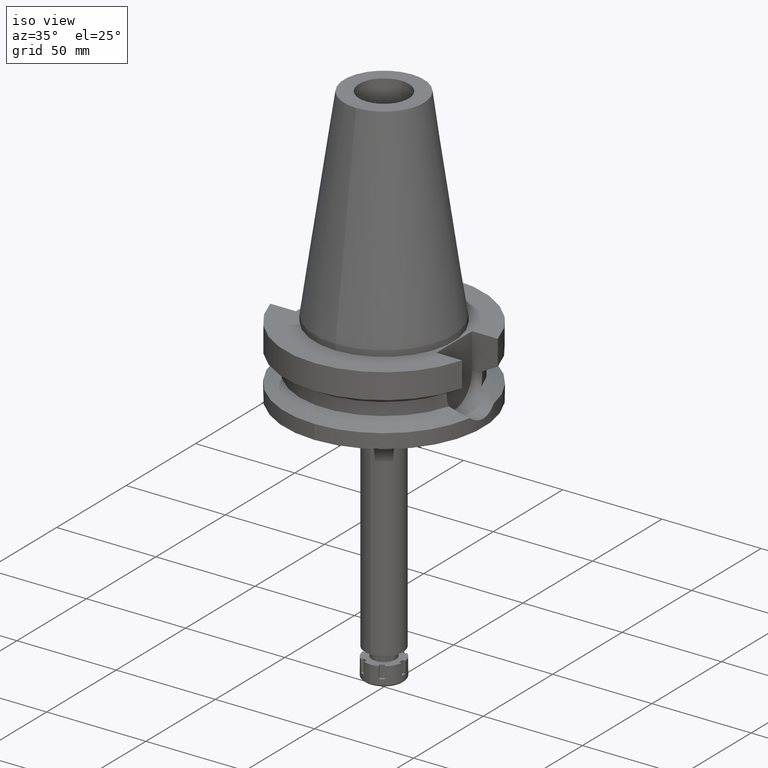
[diagram: clean part render]
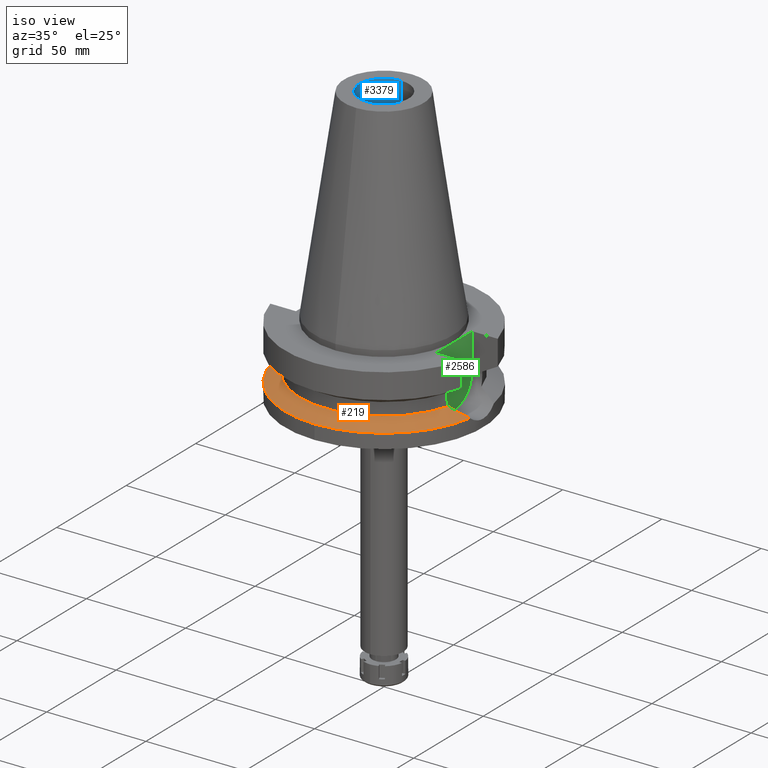
[diagram: same view with three faces highlighted in distinct colors, each labeled with its STEP entity id]
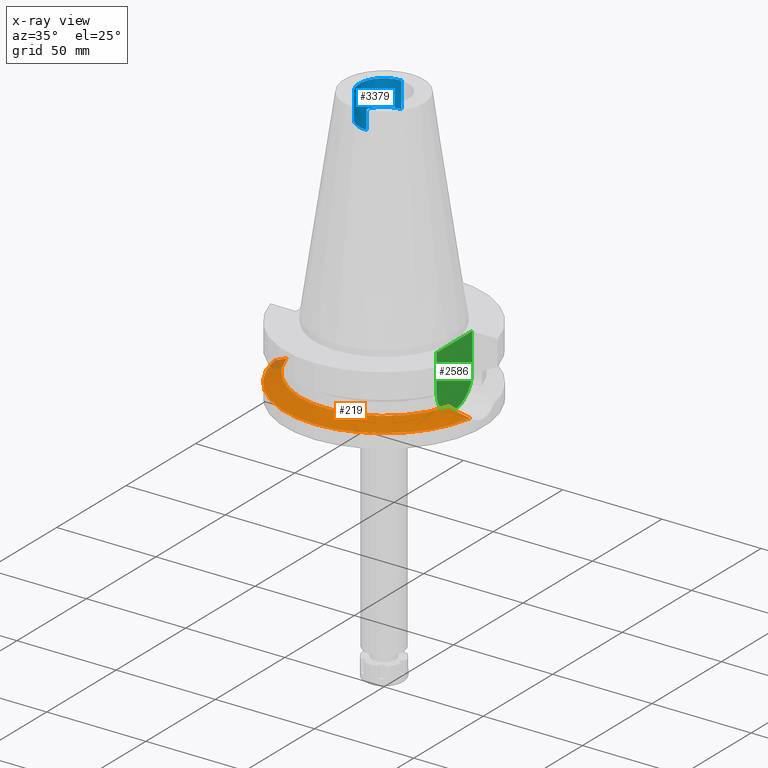
[diagram: x-ray of the same camera — body ghosted, the three highlighted faces saturated]
A machine part, iso view with three faces highlighted in distinct colors.
The next image is the same camera in x-ray (body ghosted, the three faces saturated) — at least one of them is partly hidden behind the body in this view.
Their STEP definitions:

[orange] entity #219 — the highlighted conical surface has half-angle 60 deg.
#80 = CARTESIAN_POINT ( 'NONE',  ( 45.41114734032251476, -10.35356882935180067, -28.76093257932824443 ) ) ;
#106 = CARTESIAN_POINT ( 'NONE',  ( 0.0000000000000000000, 0.0000000000000000000, -30.73730776426999967 ) ) ;
#133 = CARTESIAN_POINT ( 'NONE',  ( -45.39752549457913489, -10.35896172530817161, -28.75360426430097860 ) ) ;
#219 = ADVANCED_FACE ( 'NONE', ( #754 ), #1967, .T. ) ;
#329 = DIRECTION ( 'NONE',  ( 0.0000000000000000000, -1.000000000000000000, 0.0000000000000000000 ) ) ;
#386 = CARTESIAN_POINT ( 'NONE',  ( 44.62896528677678987, -10.63826192624886779, -28.35849464283650079 ) ) ;
#425 = EDGE_CURVE ( 'NONE', #450, #988, #2725, .T. ) ;
#438 = CIRCLE ( 'NONE', #1259, 50.00000000000000000 ) ;
#441 = CARTESIAN_POINT ( 'NONE',  ( -45.32604759747161438, -10.38583453844825044, -28.71683438483158568 ) ) ;
#446 = CARTESIAN_POINT ( 'NONE',  ( 48.17411548083510553, -9.180639421493431485, -30.17990408732095986 ) ) ;
#450 = VERTEX_POINT ( 'NONE', #1271 ) ;
#457 = CARTESIAN_POINT ( 'NONE',  ( -49.26250064874000145, -8.556052234130000045, -30.73730776426999967 ) ) ;
#608 = DIRECTION ( 'NONE',  ( 0.9852500129747439050, -0.1711210446826074982, 0.0000000000000000000 ) ) ;
#690 = CARTESIAN_POINT ( 'NONE',  ( -45.47884135725999499, -10.32818437781529752, -28.79543308990514205 ) ) ;
#710 = CARTESIAN_POINT ( 'NONE',  ( -46.22801765030641263, -10.03216824677965668, -29.18067066775586227 ) ) ;
#715 = CARTESIAN_POINT ( 'NONE',  ( 44.08627270446634583, -10.82407440620769634, -28.07906635543309903 ) ) ;
#754 = FACE_OUTER_BOUND ( 'NONE', #1649, .T. ) ;
#779 = AXIS2_PLACEMENT_3D ( 'NONE', #1332, #1910, #2705 ) ;
#808 = EDGE_CURVE ( 'NONE', #1154, #450, #2211, .T. ) ;
#904 = CARTESIAN_POINT ( 'NONE',  ( 49.26250064874000145, -8.556052234130000045, -30.73730776426999967 ) ) ;
#942 = CARTESIAN_POINT ( 'NONE',  ( 44.89557009775787577, -10.54438712182041726, -28.49570899776663069 ) ) ;
#988 = VERTEX_POINT ( 'NONE', #1301 ) ;
#1064 = ORIENTED_EDGE ( 'NONE', *, *, #3557, .F. ) ;
#1154 = VERTEX_POINT ( 'NONE', #2317 ) ;
#1167 = B_SPLINE_CURVE_WITH_KNOTS ( 'NONE', 3,
 ( #1719, #2865, #2620, #3276, #715, #386, #942, #1535, #1860, #80, #2706, #3240, #2941, #446, #2419 ),
 .UNSPECIFIED., .F., .F.,
 ( 4, 2, 2, 1, 1, 1, 2, 2, 4 ),
 ( 0.0000000000000000000, 0.2499999999999867883, 0.3749999999999801825, 0.4374999999999774070, 0.4687499999999760192, 0.4843749999999756306, 0.4921874999999766298, 0.4999999999999776845, 1.000000000000000000 ),
 .UNSPECIFIED. ) ;
#1242 = ORIENTED_EDGE ( 'NONE', *, *, #3129, .F. ) ;
#1259 = AXIS2_PLACEMENT_3D ( 'NONE', #106, #3449, #608 ) ;
#1271 = CARTESIAN_POINT ( 'NONE',  ( -49.26250064874000145, -8.556052234130000045, -30.73730776426999967 ) ) ;
#1284 = CARTESIAN_POINT ( 'NONE',  ( 0.0000000000000000000, 0.0000000000000000000, -30.73730776426999967 ) ) ;
#1301 = CARTESIAN_POINT ( 'NONE',  ( -40.85052569294000335, -11.72538061688000077, -26.40718074535000426 ) ) ;
#1305 = CARTESIAN_POINT ( 'NONE',  ( -48.69464159862322106, -8.881927206880240178, -30.44648542319169948 ) ) ;
#1332 = CARTESIAN_POINT ( 'NONE',  ( 0.0000000000000000000, 0.0000000000000000000, -28.57224425480999841 ) ) ;
#1342 = CARTESIAN_POINT ( 'NONE',  ( 40.85052569294000335, -11.72538061688000077, -26.40718074535000426 ) ) ;
#1535 = CARTESIAN_POINT ( 'NONE',  ( 45.19831145359773927, -10.43339963517109581, -28.65145591070777087 ) ) ;
#1590 = ORIENTED_EDGE ( 'NONE', *, *, #808, .F. ) ;
#1649 = EDGE_LOOP ( 'NONE', ( #1590, #1242, #1064, #2179, #2872 ) ) ;
#1666 = AXIS2_PLACEMENT_3D ( 'NONE', #3451, #3141, #329 ) ;
#1719 = CARTESIAN_POINT ( 'NONE',  ( 40.85052569294000335, -11.72538061688000077, -26.40718074535000426 ) ) ;
#1860 = CARTESIAN_POINT ( 'NONE',  ( 45.34760773394148714, -10.37756686271671036, -28.72825090948044391 ) ) ;
#1910 = DIRECTION ( 'NONE',  ( 0.0000000000000000000, 0.0000000000000000000, -1.000000000000000000 ) ) ;
#1967 = CONICAL_SURFACE ( 'NONE', #779, 46.25000000000000000, 1.047197551196400456 ) ;
#1987 = VERTEX_POINT ( 'NONE', #1342 ) ;
#2150 = CARTESIAN_POINT ( 'NONE',  ( -40.85052569294000335, -11.72538061688000077, -26.40718074535000426 ) ) ;
#2179 = ORIENTED_EDGE ( 'NONE', *, *, #2189, .F. ) ;
#2189 = EDGE_CURVE ( 'NONE', #988, #1987, #3397, .T. ) ;
#2211 = CIRCLE ( 'NONE', #2391, 50.00000000000000000 ) ;
#2317 = CARTESIAN_POINT ( 'NONE',  ( 0.0000000000000000000, -50.00000000000000000, -30.73730776426999967 ) ) ;
#2391 = AXIS2_PLACEMENT_3D ( 'NONE', #1284, #2690, #3563 ) ;
#2413 = CARTESIAN_POINT ( 'NONE',  ( -46.75505769100767139, -9.811300290057515028, -29.45151618928202097 ) ) ;
#2419 = CARTESIAN_POINT ( 'NONE',  ( 49.26250064874000145, -8.556052234130000045, -30.73730776426999967 ) ) ;
#2620 = CARTESIAN_POINT ( 'NONE',  ( 42.55058485505476540, -11.29932905614615102, -27.28700808707706926 ) ) ;
#2654 = CARTESIAN_POINT ( 'NONE',  ( -42.52884939900980044, -11.33562612316247531, -27.27647172227283789 ) ) ;
#2690 = DIRECTION ( 'NONE',  ( 0.0000000000000000000, 0.0000000000000000000, -1.000000000000000000 ) ) ;
#2697 = CARTESIAN_POINT ( 'NONE',  ( -45.96028322357604878, -10.14133759930534495, -29.04303852548128617 ) ) ;
#2705 = DIRECTION ( 'NONE',  ( 0.0000000000000000000, -1.000000000000000000, 0.0000000000000000000 ) ) ;
#2706 = CARTESIAN_POINT ( 'NONE',  ( 45.45340829707289032, -10.33755497621585384, -28.78266921495488617 ) ) ;
#2725 = B_SPLINE_CURVE_WITH_KNOTS ( 'NONE', 3,
 ( #457, #1305, #3552, #3567, #2413, #710, #2697, #3291, #690, #133, #2990, #2936, #441, #3009, #2654, #2150 ),
 .UNSPECIFIED., .F., .F.,
 ( 4, 2, 2, 1, 1, 1, 1, 2, 2, 4 ),
 ( 0.0000000000000000000, 0.2500000000000531797, 0.3750000000000797695, 0.4375000000000933142, 0.4687500000001000311, 0.4843750000001036393, 0.4921875000001046940, 0.4960937500001051381, 0.5000000000001055822, 1.000000000000000000 ),
 .UNSPECIFIED. ) ;
#2865 = CARTESIAN_POINT ( 'NONE',  ( 41.72584316825942352, -11.52210700631257723, -26.86055310759695303 ) ) ;
#2872 = ORIENTED_EDGE ( 'NONE', *, *, #425, .F. ) ;
#2936 = CARTESIAN_POINT ( 'NONE',  ( -45.33925616023898186, -10.38088120372761303, -28.72362928943382698 ) ) ;
#2941 = CARTESIAN_POINT ( 'NONE',  ( 46.91845562544436632, -9.778781588269122693, -29.53618553222547405 ) ) ;
#2990 = CARTESIAN_POINT ( 'NONE',  ( -45.36257706399497636, -10.37211797163372040, -28.73562614173595975 ) ) ;
#3009 = CARTESIAN_POINT ( 'NONE',  ( -44.01730827850749961, -10.87583879569200640, -28.04357024469653226 ) ) ;
#3129 = EDGE_CURVE ( 'NONE', #3486, #1154, #438, .T. ) ;
#3141 = DIRECTION ( 'NONE',  ( 0.0000000000000000000, 0.0000000000000000000, 1.000000000000000000 ) ) ;
#3240 = CARTESIAN_POINT ( 'NONE',  ( 45.47328773033536464, -10.32999880384496549, -28.79289391477635718 ) ) ;
#3276 = CARTESIAN_POINT ( 'NONE',  ( 43.71183370246171052, -10.94536921638192339, -27.88611119727534415 ) ) ;
#3291 = CARTESIAN_POINT ( 'NONE',  ( -45.64055118122607979, -10.26631470387935430, -28.87860995755430338 ) ) ;
#3397 = CIRCLE ( 'NONE', #1666, 42.50000000000000000 ) ;
#3449 = DIRECTION ( 'NONE',  ( 0.0000000000000000000, 0.0000000000000000000, -1.000000000000000000 ) ) ;
#3451 = CARTESIAN_POINT ( 'NONE',  ( 0.0000000000000000000, 0.0000000000000000000, -26.40718074535000426 ) ) ;
#3486 = VERTEX_POINT ( 'NONE', #904 ) ;
#3552 = CARTESIAN_POINT ( 'NONE',  ( -48.08182888045591596, -9.200268783131313910, -30.13252269354203250 ) ) ;
#3557 = EDGE_CURVE ( 'NONE', #1987, #3486, #1167, .T. ) ;
#3563 = DIRECTION ( 'NONE',  ( 0.0000000000000000000, -1.000000000000000000, 0.0000000000000000000 ) ) ;
#3567 = CARTESIAN_POINT ( 'NONE',  ( -47.09517930112918549, -9.660683931706696370, -29.62618580949758140 ) ) ;

[blue] entity #3379 — the highlighted cylindrical surface (edge-blend (fillet) strip) has radius 12.5 mm, axis along (0, 0, -1).
#66 = CIRCLE ( 'NONE', #845, 12.50000000000000000 ) ;
#131 = VERTEX_POINT ( 'NONE', #2976 ) ;
#142 = VERTEX_POINT ( 'NONE', #682 ) ;
#179 = CARTESIAN_POINT ( 'NONE',  ( 0.0000000000000000000, 2.631643506687999657E-14, 114.8900000000000006 ) ) ;
#466 = CARTESIAN_POINT ( 'NONE',  ( 0.0000000000000000000, 12.50000000000000000, 88.79999999999999716 ) ) ;
#495 = AXIS2_PLACEMENT_3D ( 'NONE', #179, #797, #2490 ) ;
#507 = EDGE_CURVE ( 'NONE', #1580, #131, #2370, .T. ) ;
#682 = CARTESIAN_POINT ( 'NONE',  ( 0.0000000000000000000, 12.50000000000000000, 101.7999999999999972 ) ) ;
#797 = DIRECTION ( 'NONE',  ( 0.0000000000000000000, 0.0000000000000000000, -1.000000000000000000 ) ) ;
#843 = CARTESIAN_POINT ( 'NONE',  ( 0.0000000000000000000, -12.50000000000000000, 88.79999999999999716 ) ) ;
#845 = AXIS2_PLACEMENT_3D ( 'NONE', #1917, #2039, #1702 ) ;
#1194 = ORIENTED_EDGE ( 'NONE', *, *, #1500, .T. ) ;
#1221 = CARTESIAN_POINT ( 'NONE',  ( 0.0000000000000000000, 2.631643506687999657E-14, 101.7999999999999972 ) ) ;
#1320 = CIRCLE ( 'NONE', #3648, 12.50000000000000000 ) ;
#1346 = FACE_OUTER_BOUND ( 'NONE', #3655, .T. ) ;
#1378 = VERTEX_POINT ( 'NONE', #2044 ) ;
#1500 = EDGE_CURVE ( 'NONE', #1378, #142, #2474, .T. ) ;
#1580 = VERTEX_POINT ( 'NONE', #843 ) ;
#1702 = DIRECTION ( 'NONE',  ( 0.0000000000000000000, -1.000000000000000000, 0.0000000000000000000 ) ) ;
#1831 = DIRECTION ( 'NONE',  ( 0.0000000000000000000, 0.0000000000000000000, 1.000000000000000000 ) ) ;
#1915 = VECTOR ( 'NONE', #1831, 1000.000000000000000 ) ;
#1917 = CARTESIAN_POINT ( 'NONE',  ( 0.0000000000000000000, 2.631643506687999657E-14, 88.79999999999999716 ) ) ;
#1957 = ORIENTED_EDGE ( 'NONE', *, *, #3132, .T. ) ;
#2017 = VECTOR ( 'NONE', #3278, 1000.000000000000000 ) ;
#2039 = DIRECTION ( 'NONE',  ( 0.0000000000000000000, 0.0000000000000000000, -1.000000000000000000 ) ) ;
#2044 = CARTESIAN_POINT ( 'NONE',  ( 0.0000000000000000000, 12.50000000000000000, 88.79999999999999716 ) ) ;
#2117 = ORIENTED_EDGE ( 'NONE', *, *, #3409, .T. ) ;
#2163 = DIRECTION ( 'NONE',  ( 0.0000000000000000000, 0.0000000000000000000, 1.000000000000000000 ) ) ;
#2370 = LINE ( 'NONE', #3515, #1915 ) ;
#2474 = LINE ( 'NONE', #466, #2017 ) ;
#2490 = DIRECTION ( 'NONE',  ( 0.0000000000000000000, -1.000000000000000000, 0.0000000000000000000 ) ) ;
#2526 = CYLINDRICAL_SURFACE ( 'NONE', #495, 12.50000000000000000 ) ;
#2976 = CARTESIAN_POINT ( 'NONE',  ( 0.0000000000000000000, -12.50000000000000000, 101.7999999999999972 ) ) ;
#3132 = EDGE_CURVE ( 'NONE', #142, #131, #1320, .T. ) ;
#3278 = DIRECTION ( 'NONE',  ( 0.0000000000000000000, 0.0000000000000000000, 1.000000000000000000 ) ) ;
#3374 = ORIENTED_EDGE ( 'NONE', *, *, #507, .F. ) ;
#3379 = ADVANCED_FACE ( 'NONE', ( #1346 ), #2526, .F. ) ;
#3409 = EDGE_CURVE ( 'NONE', #1580, #1378, #66, .T. ) ;
#3471 = DIRECTION ( 'NONE',  ( 0.0000000000000000000, 1.000000000000000000, 0.0000000000000000000 ) ) ;
#3515 = CARTESIAN_POINT ( 'NONE',  ( 0.0000000000000000000, -12.50000000000000000, 88.79999999999999716 ) ) ;
#3648 = AXIS2_PLACEMENT_3D ( 'NONE', #1221, #2163, #3471 ) ;
#3655 = EDGE_LOOP ( 'NONE', ( #1957, #3374, #2117, #1194 ) ) ;

[green] entity #2586 — the highlighted planar face has unit normal (1, 0, 0).
#451 = EDGE_CURVE ( 'NONE', #886, #934, #2102, .T. ) ;
#652 = CARTESIAN_POINT ( 'NONE',  ( 35.39999999999999858, 0.0000000000000000000, -21.14999999999999858 ) ) ;
#681 = DIRECTION ( 'NONE',  ( 0.0000000000000000000, 0.0000000000000000000, -1.000000000000000000 ) ) ;
#726 = CARTESIAN_POINT ( 'NONE',  ( 35.39999999999999858, 12.84999999999999964, -21.14999999999999858 ) ) ;
#732 = VECTOR ( 'NONE', #681, 1000.000000000000000 ) ;
#799 = DIRECTION ( 'NONE',  ( 1.000000000000000000, 0.0000000000000000000, 0.0000000000000000000 ) ) ;
#886 = VERTEX_POINT ( 'NONE', #726 ) ;
#934 = VERTEX_POINT ( 'NONE', #2478 ) ;
#1114 = ORIENTED_EDGE ( 'NONE', *, *, #451, .F. ) ;
#1402 = DIRECTION ( 'NONE',  ( 0.0000000000000000000, -1.000000000000000000, 0.0000000000000000000 ) ) ;
#1519 = LINE ( 'NONE', #2660, #732 ) ;
#1564 = ORIENTED_EDGE ( 'NONE', *, *, #3513, .F. ) ;
#1573 = DIRECTION ( 'NONE',  ( -1.000000000000000000, 0.0000000000000000000, 0.0000000000000000000 ) ) ;
#1578 = CARTESIAN_POINT ( 'NONE',  ( 35.39999999999999858, 12.84999999999999964, -3.000000000000000000 ) ) ;
#1632 = PLANE ( 'NONE',  #2869 ) ;
#1684 = LINE ( 'NONE', #1744, #2933 ) ;
#1744 = CARTESIAN_POINT ( 'NONE',  ( 35.39999999999999858, -12.84999999999999964, -21.14999999999999858 ) ) ;
#1755 = VERTEX_POINT ( 'NONE', #2913 ) ;
#1919 = VECTOR ( 'NONE', #1402, 1000.000000000000000 ) ;
#2016 = LINE ( 'NONE', #3130, #1919 ) ;
#2102 = CIRCLE ( 'NONE', #3345, 12.84999999999999964 ) ;
#2132 = DIRECTION ( 'NONE',  ( 0.0000000000000000000, 1.000000000000000000, 0.0000000000000000000 ) ) ;
#2292 = EDGE_LOOP ( 'NONE', ( #1564, #1114, #2921, #3555 ) ) ;
#2478 = CARTESIAN_POINT ( 'NONE',  ( 35.39999999999999858, -12.84999999999999964, -21.14999999999999858 ) ) ;
#2514 = FACE_OUTER_BOUND ( 'NONE', #2292, .T. ) ;
#2586 = ADVANCED_FACE ( 'NONE', ( #2514 ), #1632, .T. ) ;
#2660 = CARTESIAN_POINT ( 'NONE',  ( 35.39999999999999858, 12.84999999999999964, -3.000000000000000000 ) ) ;
#2817 = DIRECTION ( 'NONE',  ( 0.0000000000000000000, 1.000000000000000000, 0.0000000000000000000 ) ) ;
#2830 = DIRECTION ( 'NONE',  ( 0.0000000000000000000, 0.0000000000000000000, 1.000000000000000000 ) ) ;
#2869 = AXIS2_PLACEMENT_3D ( 'NONE', #3617, #799, #2817 ) ;
#2913 = CARTESIAN_POINT ( 'NONE',  ( 35.39999999999999858, -12.84999999999999964, -3.000000000000000000 ) ) ;
#2921 = ORIENTED_EDGE ( 'NONE', *, *, #3665, .F. ) ;
#2933 = VECTOR ( 'NONE', #2830, 1000.000000000000000 ) ;
#3130 = CARTESIAN_POINT ( 'NONE',  ( 35.39999999999999858, 12.84999999999999964, -3.000000000000000000 ) ) ;
#3345 = AXIS2_PLACEMENT_3D ( 'NONE', #652, #1573, #2132 ) ;
#3463 = EDGE_CURVE ( 'NONE', #3579, #1755, #2016, .T. ) ;
#3513 = EDGE_CURVE ( 'NONE', #934, #1755, #1684, .T. ) ;
#3555 = ORIENTED_EDGE ( 'NONE', *, *, #3463, .T. ) ;
#3579 = VERTEX_POINT ( 'NONE', #1578 ) ;
#3617 = CARTESIAN_POINT ( 'NONE',  ( 35.39999999999999858, 0.0000000000000000000, 0.0000000000000000000 ) ) ;
#3665 = EDGE_CURVE ( 'NONE', #3579, #886, #1519, .T. ) ;